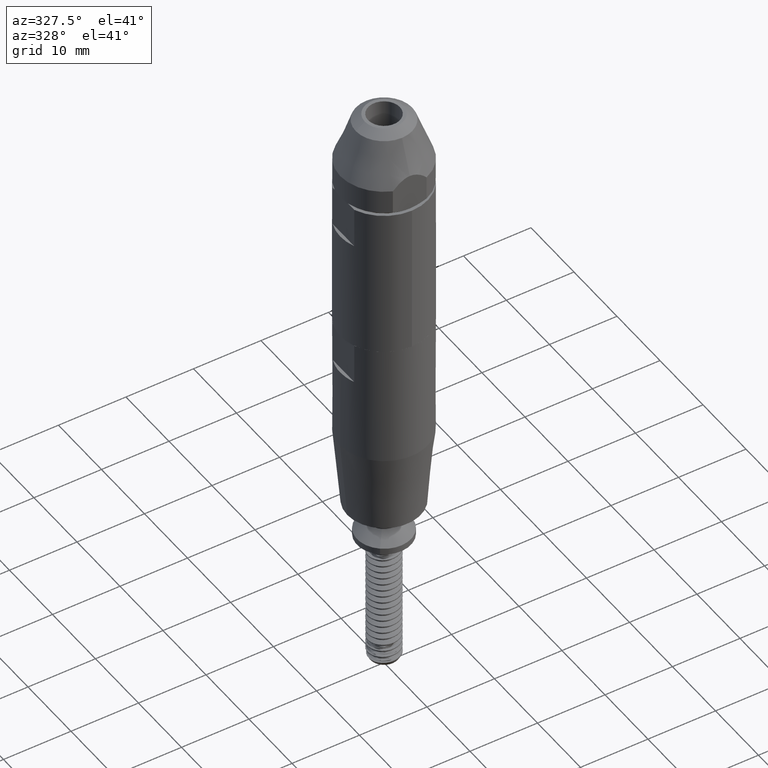
[diagram: clean part render]
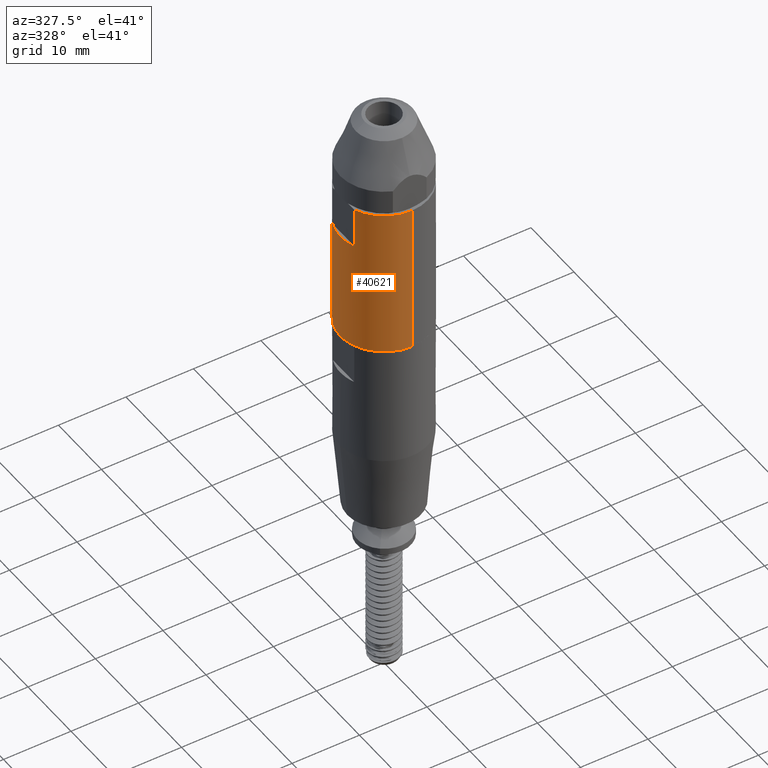
[diagram: same view with one face highlighted and labeled with its STEP entity id]
A machine part, auxiliary view. The second image highlights one B-rep face of the part: STEP entity #40621.
In plain terms, the highlighted cylindrical surface (partial cylindrical patch) has radius 6.5 mm, axis along (0, 0, -1).
Its self-contained STEP definition (entity closure, byte-faithful):
#3950 = ORIENTED_EDGE ( 'NONE', *, *, #22041, .T. ) ;
#4179 = AXIS2_PLACEMENT_3D ( 'NONE', #188411, #176479, #128929 ) ;
#14930 = EDGE_CURVE ( 'NONE', #72549, #135165, #104390, .T. ) ;
#15825 = FACE_OUTER_BOUND ( 'NONE', #135769, .T. ) ;
#20800 = ORIENTED_EDGE ( 'NONE', *, *, #71551, .F. ) ;
#22041 = EDGE_CURVE ( 'NONE', #162468, #101708, #109066, .T. ) ;
#24671 = VERTEX_POINT ( 'NONE', #152047 ) ;
#25791 = VECTOR ( 'NONE', #171270, 1000.000000000000000 ) ;
#33053 = DIRECTION ( 'NONE',  ( 1.000000000000000000, 0.000000000000000000, 0.000000000000000000 ) ) ;
#34558 = LINE ( 'NONE', #64284, #25791 ) ;
#39524 = CARTESIAN_POINT ( 'NONE',  ( -2.499999999999995115, -5.999999999999994671, -16.39999999999999858 ) ) ;
#40621 = ADVANCED_FACE ( 'NONE', ( #15825 ), #135717, .T. ) ;
#44656 = AXIS2_PLACEMENT_3D ( 'NONE', #150470, #183146, #182177 ) ;
#44682 = ORIENTED_EDGE ( 'NONE', *, *, #175228, .F. ) ;
#45736 = DIRECTION ( 'NONE',  ( 0.000000000000000000, 0.000000000000000000, 1.000000000000000000 ) ) ;
#59775 = VERTEX_POINT ( 'NONE', #178091 ) ;
#60007 = LINE ( 'NONE', #101637, #193031 ) ;
#62962 = DIRECTION ( 'NONE',  ( 1.000000000000000000, 0.000000000000000000, 0.000000000000000000 ) ) ;
#63495 = ORIENTED_EDGE ( 'NONE', *, *, #14930, .F. ) ;
#64284 = CARTESIAN_POINT ( 'NONE',  ( -6.499999999999989342, 7.960204194457788574E-16, -22.39999999999999858 ) ) ;
#66938 = CARTESIAN_POINT ( 'NONE',  ( 6.499999999999997335, 0.000000000000000000, -22.39999999999999858 ) ) ;
#71551 = EDGE_CURVE ( 'NONE', #166999, #136375, #91887, .T. ) ;
#71749 = CARTESIAN_POINT ( 'NONE',  ( -2.499999999999994671, -5.999999999999993783, -22.39999999999999858 ) ) ;
#72549 = VERTEX_POINT ( 'NONE', #39524 ) ;
#74484 = LINE ( 'NONE', #165654, #162359 ) ;
#77149 = EDGE_CURVE ( 'NONE', #59775, #72549, #152158, .T. ) ;
#81747 = EDGE_CURVE ( 'NONE', #101708, #136375, #60007, .T. ) ;
#83008 = CARTESIAN_POINT ( 'NONE',  ( -2.499999999999988454, -5.999999999999993783, -22.39999999999999858 ) ) ;
#91887 = CIRCLE ( 'NONE', #186819, 6.499999999999997335 ) ;
#95293 = ORIENTED_EDGE ( 'NONE', *, *, #138213, .T. ) ;
#96385 = DIRECTION ( 'NONE',  ( 0.000000000000000000, 0.000000000000000000, 1.000000000000000000 ) ) ;
#101637 = CARTESIAN_POINT ( 'NONE',  ( 6.500000000000000000, 0.000000000000000000, -22.39999999999999858 ) ) ;
#101708 = VERTEX_POINT ( 'NONE', #66938 ) ;
#103420 = DIRECTION ( 'NONE',  ( -0.000000000000000000, -0.000000000000000000, -1.000000000000000000 ) ) ;
#104010 = CARTESIAN_POINT ( 'NONE',  ( 5.498664128171615410E-15, 0.000000000000000000, -22.39999999999999858 ) ) ;
#104390 = LINE ( 'NONE', #71749, #189239 ) ;
#109066 = CIRCLE ( 'NONE', #134265, 6.499999999999992006 ) ;
#111225 = CARTESIAN_POINT ( 'NONE',  ( 5.498664128171615410E-15, 0.000000000000000000, 0.09999999999999939493 ) ) ;
#115652 = ORIENTED_EDGE ( 'NONE', *, *, #81747, .T. ) ;
#121405 = DIRECTION ( 'NONE',  ( 0.000000000000000000, 0.000000000000000000, 1.000000000000000000 ) ) ;
#122377 = CARTESIAN_POINT ( 'NONE',  ( 5.498664128171615410E-15, 0.000000000000000000, -22.39999999999999858 ) ) ;
#123860 = ORIENTED_EDGE ( 'NONE', *, *, #181100, .F. ) ;
#128929 = DIRECTION ( 'NONE',  ( 1.000000000000000000, 0.000000000000000000, 0.000000000000000000 ) ) ;
#132775 = DIRECTION ( 'NONE',  ( 0.000000000000000000, 0.000000000000000000, 1.000000000000000000 ) ) ;
#133987 = AXIS2_PLACEMENT_3D ( 'NONE', #104010, #132775, #164487 ) ;
#134265 = AXIS2_PLACEMENT_3D ( 'NONE', #122377, #121405, #62962 ) ;
#135165 = VERTEX_POINT ( 'NONE', #83008 ) ;
#135717 = CYLINDRICAL_SURFACE ( 'NONE', #133987, 6.499999999999994671 ) ;
#135769 = EDGE_LOOP ( 'NONE', ( #123860, #95293, #63495, #152605, #44682, #3950, #115652, #20800 ) ) ;
#136375 = VERTEX_POINT ( 'NONE', #188554 ) ;
#138213 = EDGE_CURVE ( 'NONE', #24671, #135165, #143458, .T. ) ;
#143458 = CIRCLE ( 'NONE', #4179, 6.499999999999992006 ) ;
#150470 = CARTESIAN_POINT ( 'NONE',  ( 5.498664128171615410E-15, 0.000000000000000000, -16.39999999999999858 ) ) ;
#152047 = CARTESIAN_POINT ( 'NONE',  ( -6.499999999999986677, 7.960204194457786602E-16, -22.39999999999999858 ) ) ;
#152158 = CIRCLE ( 'NONE', #44656, 6.499999999999994671 ) ;
#152605 = ORIENTED_EDGE ( 'NONE', *, *, #77149, .F. ) ;
#162359 = VECTOR ( 'NONE', #45736, 1000.000000000000000 ) ;
#162468 = VERTEX_POINT ( 'NONE', #172553 ) ;
#164487 = DIRECTION ( 'NONE',  ( 1.000000000000000000, 0.000000000000000000, 0.000000000000000000 ) ) ;
#165654 = CARTESIAN_POINT ( 'NONE',  ( 2.500000000000006217, -5.999999999999993783, -22.39999999999999858 ) ) ;
#165831 = CARTESIAN_POINT ( 'NONE',  ( -6.499999999999992006, 7.960204194457792519E-16, 0.09999999999999939493 ) ) ;
#166999 = VERTEX_POINT ( 'NONE', #165831 ) ;
#171270 = DIRECTION ( 'NONE',  ( 0.000000000000000000, 0.000000000000000000, 1.000000000000000000 ) ) ;
#172553 = CARTESIAN_POINT ( 'NONE',  ( 2.499999999999998668, -5.999999999999993783, -22.39999999999999858 ) ) ;
#175228 = EDGE_CURVE ( 'NONE', #162468, #59775, #74484, .T. ) ;
#176479 = DIRECTION ( 'NONE',  ( 0.000000000000000000, 0.000000000000000000, 1.000000000000000000 ) ) ;
#178091 = CARTESIAN_POINT ( 'NONE',  ( 2.500000000000005773, -5.999999999999994671, -16.39999999999999858 ) ) ;
#181100 = EDGE_CURVE ( 'NONE', #24671, #166999, #34558, .T. ) ;
#182177 = DIRECTION ( 'NONE',  ( 1.000000000000000000, 0.000000000000000000, 0.000000000000000000 ) ) ;
#183146 = DIRECTION ( 'NONE',  ( -0.000000000000000000, 0.000000000000000000, -1.000000000000000000 ) ) ;
#186819 = AXIS2_PLACEMENT_3D ( 'NONE', #111225, #96385, #33053 ) ;
#188411 = CARTESIAN_POINT ( 'NONE',  ( 5.498664128171615410E-15, 0.000000000000000000, -22.39999999999999858 ) ) ;
#188554 = CARTESIAN_POINT ( 'NONE',  ( 6.500000000000002665, 0.000000000000000000, 0.09999999999999939493 ) ) ;
#189239 = VECTOR ( 'NONE', #103420, 1000.000000000000000 ) ;
#193031 = VECTOR ( 'NONE', #194758, 1000.000000000000000 ) ;
#194758 = DIRECTION ( 'NONE',  ( 0.000000000000000000, 0.000000000000000000, 1.000000000000000000 ) ) ;